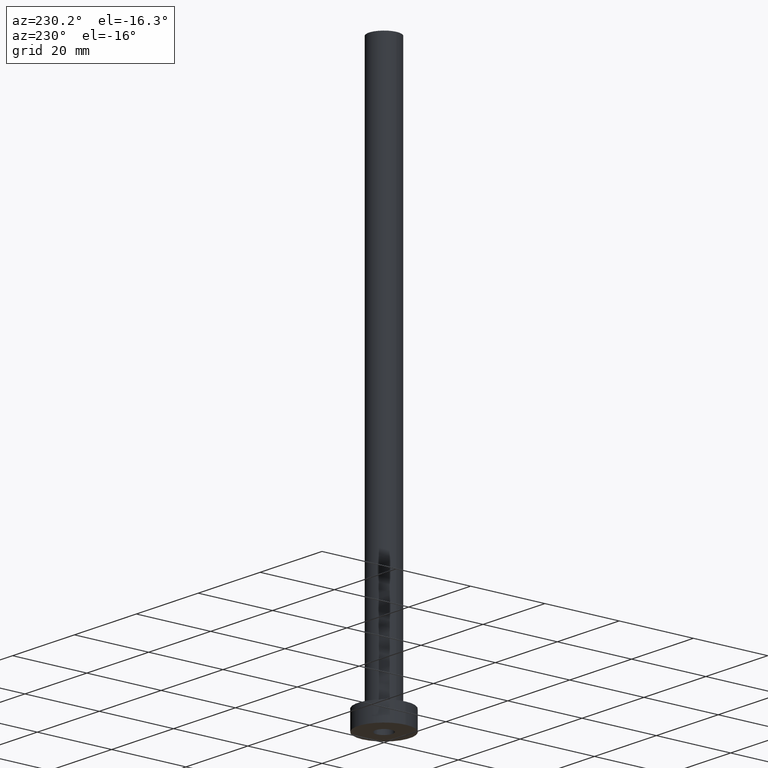
[diagram: clean part render]
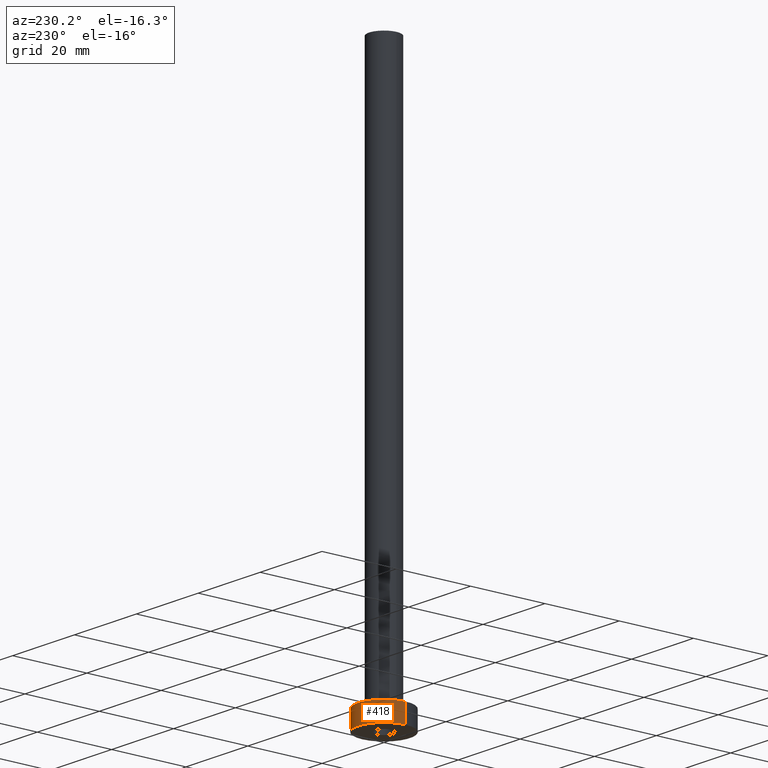
[diagram: same view with one face highlighted and labeled with its STEP entity id]
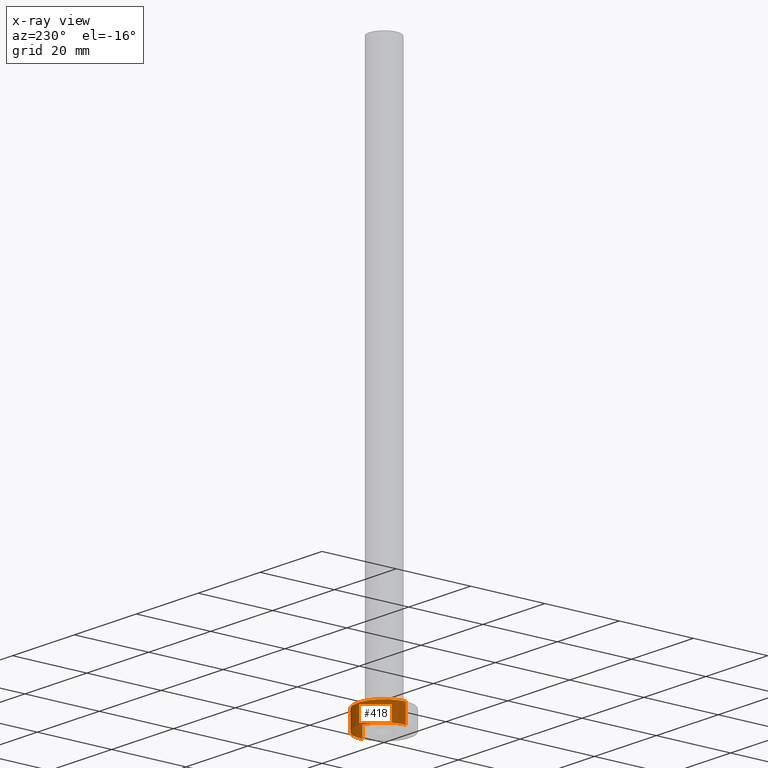
[diagram: x-ray of the same camera — body ghosted, the highlighted face saturated]
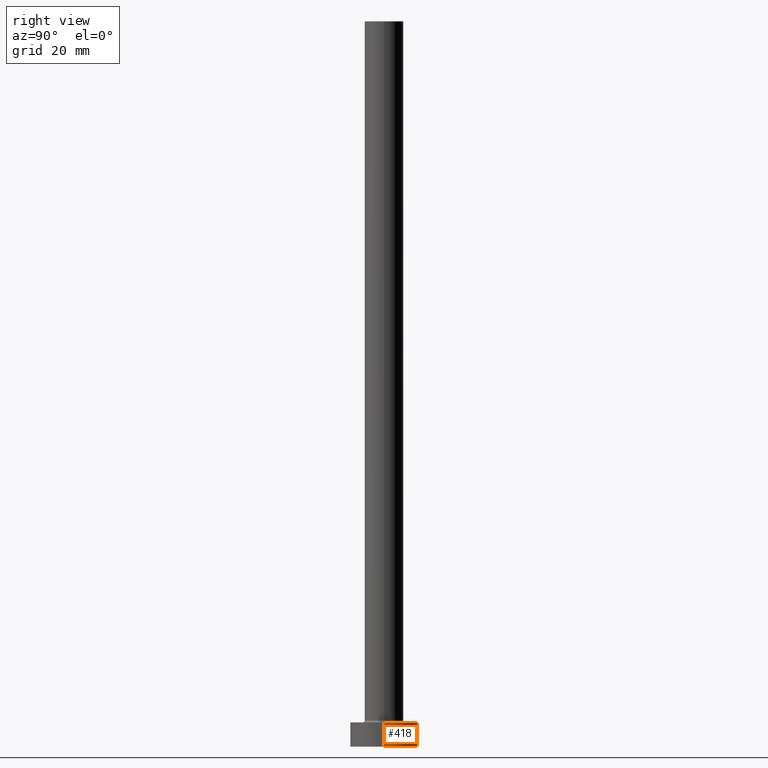
[diagram: same view with one face highlighted and labeled with its STEP entity id]
A machine part, auxiliary view. The second image highlights one B-rep face of the part: STEP entity #418.
The next image is the same camera in x-ray: the body ghosted, the highlighted face saturated — about 0% of this face is hidden behind the body in this view.
A second angle (right view) of the same face is appended — the face is thin or edge-on in the first view.
In plain terms, the highlighted cylindrical surface (edge-blend (fillet) strip) has radius 7 mm, axis along (-0, -0, -1).
Its self-contained STEP definition (entity closure, byte-faithful):
#1 = LINE ( 'NONE', #396, #433 ) ;
#5 = EDGE_LOOP ( 'NONE', ( #38, #45, #351, #422 ) ) ;
#38 = ORIENTED_EDGE ( 'NONE', *, *, #276, .F. ) ;
#44 = CARTESIAN_POINT ( 'NONE',  ( 0.000000000000000000, 0.000000000000000000, 5.000000000000000000 ) ) ;
#45 = ORIENTED_EDGE ( 'NONE', *, *, #377, .T. ) ;
#87 = DIRECTION ( 'NONE',  ( -0.000000000000000000, -0.000000000000000000, -1.000000000000000000 ) ) ;
#89 = AXIS2_PLACEMENT_3D ( 'NONE', #220, #87, #157 ) ;
#98 = CARTESIAN_POINT ( 'NONE',  ( -7.000000000000000000, 0.000000000000000000, 0.000000000000000000 ) ) ;
#101 = LINE ( 'NONE', #354, #154 ) ;
#104 = DIRECTION ( 'NONE',  ( -0.000000000000000000, -0.000000000000000000, -1.000000000000000000 ) ) ;
#142 = VERTEX_POINT ( 'NONE', #98 ) ;
#154 = VECTOR ( 'NONE', #207, 1000.000000000000000 ) ;
#157 = DIRECTION ( 'NONE',  ( -1.000000000000000000, 0.000000000000000000, 0.000000000000000000 ) ) ;
#170 = AXIS2_PLACEMENT_3D ( 'NONE', #44, #363, #289 ) ;
#173 = VERTEX_POINT ( 'NONE', #271 ) ;
#174 = DIRECTION ( 'NONE',  ( 1.000000000000000000, 0.000000000000000000, 0.000000000000000000 ) ) ;
#207 = DIRECTION ( 'NONE',  ( -0.000000000000000000, -0.000000000000000000, -1.000000000000000000 ) ) ;
#209 = CARTESIAN_POINT ( 'NONE',  ( 7.000000000000000000, 8.572527594031473190E-16, 0.000000000000000000 ) ) ;
#210 = DIRECTION ( 'NONE',  ( 0.000000000000000000, 0.000000000000000000, 1.000000000000000000 ) ) ;
#220 = CARTESIAN_POINT ( 'NONE',  ( 0.000000000000000000, 0.000000000000000000, 5.000000000000000000 ) ) ;
#251 = CARTESIAN_POINT ( 'NONE',  ( 7.000000000000000000, 8.572527594031473190E-16, 5.000000000000000000 ) ) ;
#270 = AXIS2_PLACEMENT_3D ( 'NONE', #322, #210, #174 ) ;
#271 = CARTESIAN_POINT ( 'NONE',  ( -7.000000000000000000, 0.000000000000000000, 5.000000000000000000 ) ) ;
#276 = EDGE_CURVE ( 'NONE', #392, #173, #366, .T. ) ;
#289 = DIRECTION ( 'NONE',  ( 1.000000000000000000, 0.000000000000000000, 0.000000000000000000 ) ) ;
#294 = FACE_OUTER_BOUND ( 'NONE', #5, .T. ) ;
#295 = CIRCLE ( 'NONE', #270, 7.000000000000000000 ) ;
#298 = EDGE_CURVE ( 'NONE', #173, #142, #101, .T. ) ;
#322 = CARTESIAN_POINT ( 'NONE',  ( 0.000000000000000000, 0.000000000000000000, 0.000000000000000000 ) ) ;
#332 = CYLINDRICAL_SURFACE ( 'NONE', #89, 7.000000000000000000 ) ;
#334 = EDGE_CURVE ( 'NONE', #399, #142, #295, .T. ) ;
#351 = ORIENTED_EDGE ( 'NONE', *, *, #334, .T. ) ;
#354 = CARTESIAN_POINT ( 'NONE',  ( -7.000000000000000000, 0.000000000000000000, 5.000000000000000000 ) ) ;
#363 = DIRECTION ( 'NONE',  ( 0.000000000000000000, 0.000000000000000000, 1.000000000000000000 ) ) ;
#366 = CIRCLE ( 'NONE', #170, 7.000000000000000000 ) ;
#377 = EDGE_CURVE ( 'NONE', #392, #399, #1, .T. ) ;
#392 = VERTEX_POINT ( 'NONE', #251 ) ;
#396 = CARTESIAN_POINT ( 'NONE',  ( 7.000000000000000000, 8.572527594031473190E-16, 5.000000000000000000 ) ) ;
#399 = VERTEX_POINT ( 'NONE', #209 ) ;
#418 = ADVANCED_FACE ( 'NONE', ( #294 ), #332, .T. ) ;
#422 = ORIENTED_EDGE ( 'NONE', *, *, #298, .F. ) ;
#433 = VECTOR ( 'NONE', #104, 1000.000000000000000 ) ;